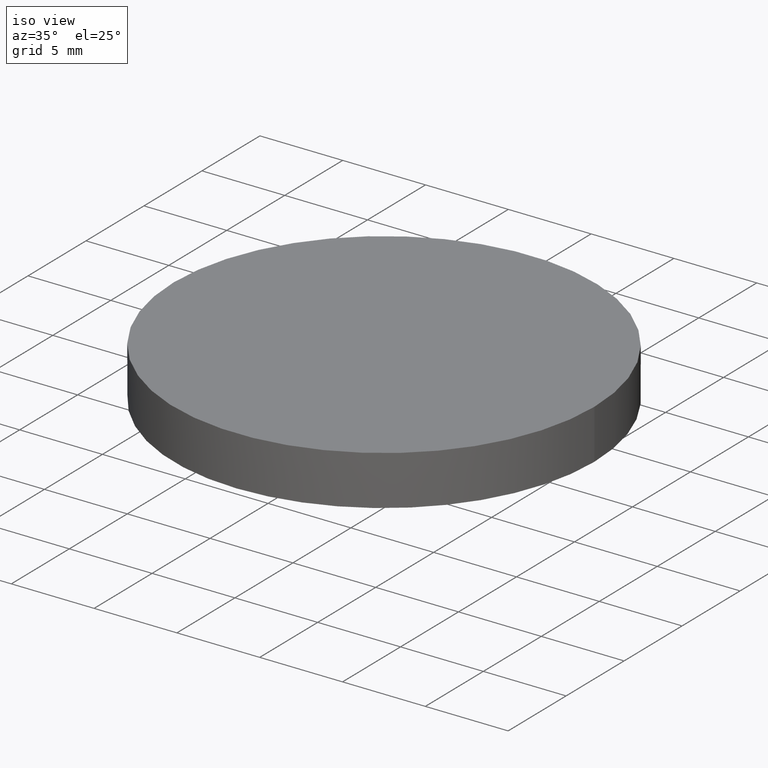
[diagram: clean part render]
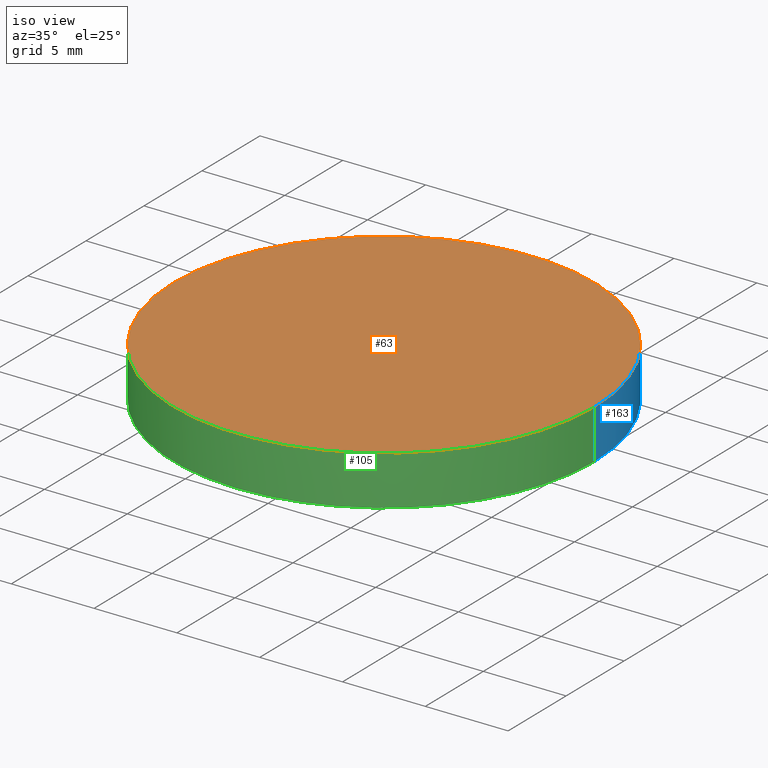
[diagram: same view with three faces highlighted in distinct colors, each labeled with its STEP entity id]
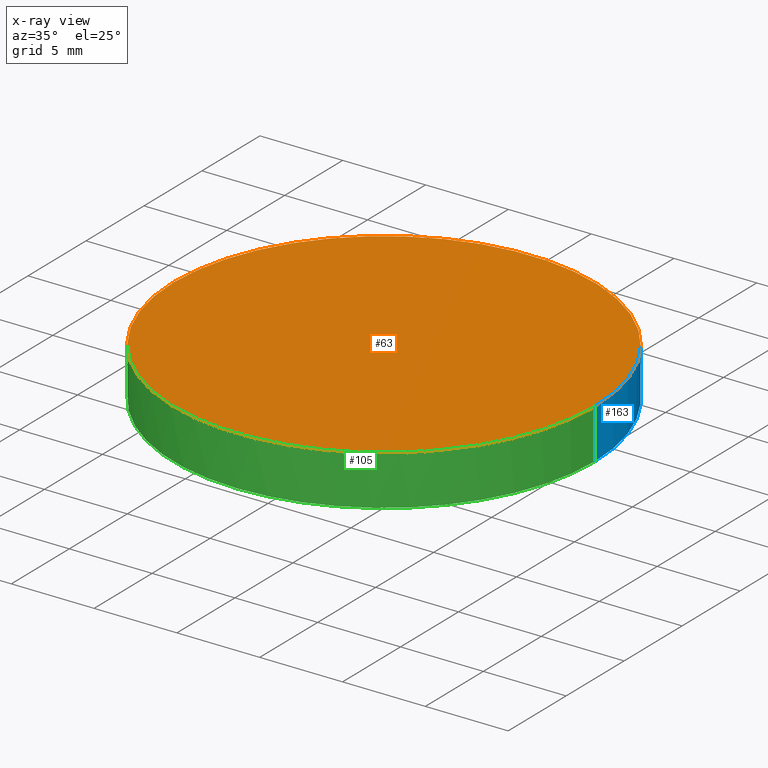
[diagram: x-ray of the same camera — body ghosted, the three highlighted faces saturated]
A machine part, iso view with three faces highlighted in distinct colors.
The next image is the same camera in x-ray (body ghosted, the three faces saturated) — at least one of them is partly hidden behind the body in this view.
Their STEP definitions:

[orange] entity #63 — the highlighted planar face has unit normal (0, 0, 1).
#5 = AXIS2_PLACEMENT_3D ( 'NONE', #138, #84, #34 ) ;
#20 = CIRCLE ( 'NONE', #233, 12.69999999999999900 ) ;
#34 = DIRECTION ( 'NONE',  ( 1.000000000000000000, 0.0000000000000000000, -0.0000000000000000000 ) ) ;
#39 = EDGE_CURVE ( 'NONE', #126, #99, #60, .T. ) ;
#47 = ORIENTED_EDGE ( 'NONE', *, *, #114, .F. ) ;
#48 = CARTESIAN_POINT ( 'NONE',  ( -12.69999999999999900, 3.997792089092478900E-015, 4.299999999999999800 ) ) ;
#60 = CIRCLE ( 'NONE', #92, 12.69999999999999900 ) ;
#63 = ADVANCED_FACE ( 'NONE', ( #204 ), #161, .T. ) ;
#73 = CARTESIAN_POINT ( 'NONE',  ( 4.996003610813200500E-016, 2.442490654175340100E-015, 4.299999999999999800 ) ) ;
#84 = DIRECTION ( 'NONE',  ( 0.0000000000000000000, 0.0000000000000000000, 1.000000000000000000 ) ) ;
#92 = AXIS2_PLACEMENT_3D ( 'NONE', #73, #198, #116 ) ;
#99 = VERTEX_POINT ( 'NONE', #190 ) ;
#100 = DIRECTION ( 'NONE',  ( 1.000000000000000000, 0.0000000000000000000, 0.0000000000000000000 ) ) ;
#114 = EDGE_CURVE ( 'NONE', #99, #126, #20, .T. ) ;
#116 = DIRECTION ( 'NONE',  ( 1.000000000000000000, 0.0000000000000000000, 0.0000000000000000000 ) ) ;
#123 = ORIENTED_EDGE ( 'NONE', *, *, #39, .F. ) ;
#126 = VERTEX_POINT ( 'NONE', #48 ) ;
#138 = CARTESIAN_POINT ( 'NONE',  ( 0.0000000000000000000, 26.11199999999999800, 4.299999999999999800 ) ) ;
#161 = PLANE ( 'NONE',  #5 ) ;
#176 = DIRECTION ( 'NONE',  ( -0.0000000000000000000, -0.0000000000000000000, -1.000000000000000000 ) ) ;
#190 = CARTESIAN_POINT ( 'NONE',  ( 12.69999999999999900, 2.442490654175340100E-015, 4.299999999999999800 ) ) ;
#198 = DIRECTION ( 'NONE',  ( -0.0000000000000000000, -0.0000000000000000000, -1.000000000000000000 ) ) ;
#201 = EDGE_LOOP ( 'NONE', ( #47, #123 ) ) ;
#204 = FACE_OUTER_BOUND ( 'NONE', #201, .T. ) ;
#210 = CARTESIAN_POINT ( 'NONE',  ( 4.996003610813200500E-016, 2.442490654175340100E-015, 4.299999999999999800 ) ) ;
#233 = AXIS2_PLACEMENT_3D ( 'NONE', #210, #176, #100 ) ;

[blue] entity #163 — the highlighted cylindrical surface (partial cylindrical patch) has radius 12.7 mm, axis along (0, 0, 1).
#6 = LINE ( 'NONE', #157, #125 ) ;
#15 = CARTESIAN_POINT ( 'NONE',  ( 4.996003610813200500E-016, 2.442490654175340100E-015, 1.298828136175660200 ) ) ;
#23 = AXIS2_PLACEMENT_3D ( 'NONE', #85, #227, #211 ) ;
#24 = ORIENTED_EDGE ( 'NONE', *, *, #135, .F. ) ;
#26 = AXIS2_PLACEMENT_3D ( 'NONE', #15, #88, #98 ) ;
#27 = ORIENTED_EDGE ( 'NONE', *, *, #39, .T. ) ;
#35 = CARTESIAN_POINT ( 'NONE',  ( 12.69999999999999900, 2.442490654175340100E-015, 1.298828136175660200 ) ) ;
#39 = EDGE_CURVE ( 'NONE', #126, #99, #60, .T. ) ;
#42 = CIRCLE ( 'NONE', #166, 12.69999999999999900 ) ;
#43 = EDGE_CURVE ( 'NONE', #76, #108, #42, .T. ) ;
#48 = CARTESIAN_POINT ( 'NONE',  ( -12.69999999999999900, 3.997792089092478900E-015, 4.299999999999999800 ) ) ;
#53 = CARTESIAN_POINT ( 'NONE',  ( 12.69999999999999900, 2.442490654175340100E-015, 1.298828136175660200 ) ) ;
#60 = CIRCLE ( 'NONE', #92, 12.69999999999999900 ) ;
#73 = CARTESIAN_POINT ( 'NONE',  ( 4.996003610813200500E-016, 2.442490654175340100E-015, 4.299999999999999800 ) ) ;
#76 = VERTEX_POINT ( 'NONE', #197 ) ;
#85 = CARTESIAN_POINT ( 'NONE',  ( 4.996003610813200500E-016, 2.442490654175340100E-015, 1.298828136175660200 ) ) ;
#88 = DIRECTION ( 'NONE',  ( 0.0000000000000000000, 0.0000000000000000000, 1.000000000000000000 ) ) ;
#92 = AXIS2_PLACEMENT_3D ( 'NONE', #73, #198, #116 ) ;
#93 = CYLINDRICAL_SURFACE ( 'NONE', #26, 12.69999999999999900 ) ;
#98 = DIRECTION ( 'NONE',  ( 1.000000000000000000, 0.0000000000000000000, 0.0000000000000000000 ) ) ;
#99 = VERTEX_POINT ( 'NONE', #190 ) ;
#103 = FACE_OUTER_BOUND ( 'NONE', #147, .T. ) ;
#108 = VERTEX_POINT ( 'NONE', #53 ) ;
#116 = DIRECTION ( 'NONE',  ( 1.000000000000000000, 0.0000000000000000000, 0.0000000000000000000 ) ) ;
#125 = VECTOR ( 'NONE', #225, 1000.000000000000000 ) ;
#126 = VERTEX_POINT ( 'NONE', #48 ) ;
#134 = CARTESIAN_POINT ( 'NONE',  ( -12.69999999999999900, 3.997792089092478900E-015, 1.298828136175660200 ) ) ;
#135 = EDGE_CURVE ( 'NONE', #214, #76, #234, .T. ) ;
#139 = CARTESIAN_POINT ( 'NONE',  ( 4.996003610813200500E-016, 2.442490654175340100E-015, 1.298828136175660200 ) ) ;
#147 = EDGE_LOOP ( 'NONE', ( #24, #168, #27, #150, #153 ) ) ;
#149 = EDGE_CURVE ( 'NONE', #108, #99, #186, .T. ) ;
#150 = ORIENTED_EDGE ( 'NONE', *, *, #149, .F. ) ;
#153 = ORIENTED_EDGE ( 'NONE', *, *, #43, .F. ) ;
#157 = CARTESIAN_POINT ( 'NONE',  ( -12.69999999999999900, 3.997792089092478900E-015, 1.298828136175660200 ) ) ;
#158 = DIRECTION ( 'NONE',  ( 0.0000000000000000000, 0.0000000000000000000, 1.000000000000000000 ) ) ;
#163 = ADVANCED_FACE ( 'NONE', ( #103 ), #93, .T. ) ;
#166 = AXIS2_PLACEMENT_3D ( 'NONE', #139, #194, #228 ) ;
#168 = ORIENTED_EDGE ( 'NONE', *, *, #203, .T. ) ;
#186 = LINE ( 'NONE', #35, #202 ) ;
#190 = CARTESIAN_POINT ( 'NONE',  ( 12.69999999999999900, 2.442490654175340100E-015, 4.299999999999999800 ) ) ;
#194 = DIRECTION ( 'NONE',  ( -0.0000000000000000000, -0.0000000000000000000, -1.000000000000000000 ) ) ;
#197 = CARTESIAN_POINT ( 'NONE',  ( 7.105427357600998700E-015, 12.70000000000000300, 1.298828136175658200 ) ) ;
#198 = DIRECTION ( 'NONE',  ( -0.0000000000000000000, -0.0000000000000000000, -1.000000000000000000 ) ) ;
#202 = VECTOR ( 'NONE', #158, 1000.000000000000000 ) ;
#203 = EDGE_CURVE ( 'NONE', #214, #126, #6, .T. ) ;
#211 = DIRECTION ( 'NONE',  ( 1.000000000000000000, 8.881784197001252300E-016, 0.0000000000000000000 ) ) ;
#214 = VERTEX_POINT ( 'NONE', #134 ) ;
#225 = DIRECTION ( 'NONE',  ( 0.0000000000000000000, 0.0000000000000000000, 1.000000000000000000 ) ) ;
#227 = DIRECTION ( 'NONE',  ( -0.0000000000000000000, -0.0000000000000000000, -1.000000000000000000 ) ) ;
#228 = DIRECTION ( 'NONE',  ( 1.000000000000000000, -1.776356839400250500E-015, 0.0000000000000000000 ) ) ;
#234 = CIRCLE ( 'NONE', #23, 12.69999999999999900 ) ;

[green] entity #105 — the highlighted cylindrical surface (partial cylindrical patch) has radius 12.7 mm, axis along (0, 0, 1).
#3 = CYLINDRICAL_SURFACE ( 'NONE', #51, 12.69999999999999900 ) ;
#6 = LINE ( 'NONE', #157, #125 ) ;
#12 = EDGE_CURVE ( 'NONE', #108, #137, #89, .T. ) ;
#20 = CIRCLE ( 'NONE', #233, 12.69999999999999900 ) ;
#35 = CARTESIAN_POINT ( 'NONE',  ( 12.69999999999999900, 2.442490654175340100E-015, 1.298828136175660200 ) ) ;
#48 = CARTESIAN_POINT ( 'NONE',  ( -12.69999999999999900, 3.997792089092478900E-015, 4.299999999999999800 ) ) ;
#50 = EDGE_LOOP ( 'NONE', ( #97, #141, #80, #129, #86 ) ) ;
#51 = AXIS2_PLACEMENT_3D ( 'NONE', #87, #71, #226 ) ;
#53 = CARTESIAN_POINT ( 'NONE',  ( 12.69999999999999900, 2.442490654175340100E-015, 1.298828136175660200 ) ) ;
#56 = AXIS2_PLACEMENT_3D ( 'NONE', #111, #65, #132 ) ;
#65 = DIRECTION ( 'NONE',  ( -0.0000000000000000000, -0.0000000000000000000, -1.000000000000000000 ) ) ;
#68 = CARTESIAN_POINT ( 'NONE',  ( 7.105427357600998700E-015, -12.70000000000000300, 1.298828136175658200 ) ) ;
#69 = DIRECTION ( 'NONE',  ( 1.000000000000000000, 0.0000000000000000000, 0.0000000000000000000 ) ) ;
#71 = DIRECTION ( 'NONE',  ( 0.0000000000000000000, 0.0000000000000000000, 1.000000000000000000 ) ) ;
#80 = ORIENTED_EDGE ( 'NONE', *, *, #12, .F. ) ;
#86 = ORIENTED_EDGE ( 'NONE', *, *, #114, .T. ) ;
#87 = CARTESIAN_POINT ( 'NONE',  ( 4.996003610813200500E-016, 2.442490654175340100E-015, 1.298828136175660200 ) ) ;
#89 = CIRCLE ( 'NONE', #56, 12.69999999999999900 ) ;
#97 = ORIENTED_EDGE ( 'NONE', *, *, #203, .F. ) ;
#99 = VERTEX_POINT ( 'NONE', #190 ) ;
#100 = DIRECTION ( 'NONE',  ( 1.000000000000000000, 0.0000000000000000000, 0.0000000000000000000 ) ) ;
#102 = DIRECTION ( 'NONE',  ( -0.0000000000000000000, -0.0000000000000000000, -1.000000000000000000 ) ) ;
#105 = ADVANCED_FACE ( 'NONE', ( #230 ), #3, .T. ) ;
#108 = VERTEX_POINT ( 'NONE', #53 ) ;
#111 = CARTESIAN_POINT ( 'NONE',  ( 4.996003610813200500E-016, 2.442490654175340100E-015, 1.298828136175660200 ) ) ;
#114 = EDGE_CURVE ( 'NONE', #99, #126, #20, .T. ) ;
#117 = CARTESIAN_POINT ( 'NONE',  ( 4.996003610813200500E-016, 2.442490654175340100E-015, 1.298828136175660200 ) ) ;
#125 = VECTOR ( 'NONE', #225, 1000.000000000000000 ) ;
#126 = VERTEX_POINT ( 'NONE', #48 ) ;
#127 = AXIS2_PLACEMENT_3D ( 'NONE', #117, #102, #69 ) ;
#129 = ORIENTED_EDGE ( 'NONE', *, *, #149, .T. ) ;
#132 = DIRECTION ( 'NONE',  ( 1.000000000000000000, 0.0000000000000000000, 0.0000000000000000000 ) ) ;
#134 = CARTESIAN_POINT ( 'NONE',  ( -12.69999999999999900, 3.997792089092478900E-015, 1.298828136175660200 ) ) ;
#137 = VERTEX_POINT ( 'NONE', #68 ) ;
#141 = ORIENTED_EDGE ( 'NONE', *, *, #182, .F. ) ;
#149 = EDGE_CURVE ( 'NONE', #108, #99, #186, .T. ) ;
#157 = CARTESIAN_POINT ( 'NONE',  ( -12.69999999999999900, 3.997792089092478900E-015, 1.298828136175660200 ) ) ;
#158 = DIRECTION ( 'NONE',  ( 0.0000000000000000000, 0.0000000000000000000, 1.000000000000000000 ) ) ;
#160 = CIRCLE ( 'NONE', #127, 12.69999999999999900 ) ;
#176 = DIRECTION ( 'NONE',  ( -0.0000000000000000000, -0.0000000000000000000, -1.000000000000000000 ) ) ;
#182 = EDGE_CURVE ( 'NONE', #137, #214, #160, .T. ) ;
#186 = LINE ( 'NONE', #35, #202 ) ;
#190 = CARTESIAN_POINT ( 'NONE',  ( 12.69999999999999900, 2.442490654175340100E-015, 4.299999999999999800 ) ) ;
#202 = VECTOR ( 'NONE', #158, 1000.000000000000000 ) ;
#203 = EDGE_CURVE ( 'NONE', #214, #126, #6, .T. ) ;
#210 = CARTESIAN_POINT ( 'NONE',  ( 4.996003610813200500E-016, 2.442490654175340100E-015, 4.299999999999999800 ) ) ;
#214 = VERTEX_POINT ( 'NONE', #134 ) ;
#225 = DIRECTION ( 'NONE',  ( 0.0000000000000000000, 0.0000000000000000000, 1.000000000000000000 ) ) ;
#226 = DIRECTION ( 'NONE',  ( 1.000000000000000000, 0.0000000000000000000, 0.0000000000000000000 ) ) ;
#230 = FACE_OUTER_BOUND ( 'NONE', #50, .T. ) ;
#233 = AXIS2_PLACEMENT_3D ( 'NONE', #210, #176, #100 ) ;